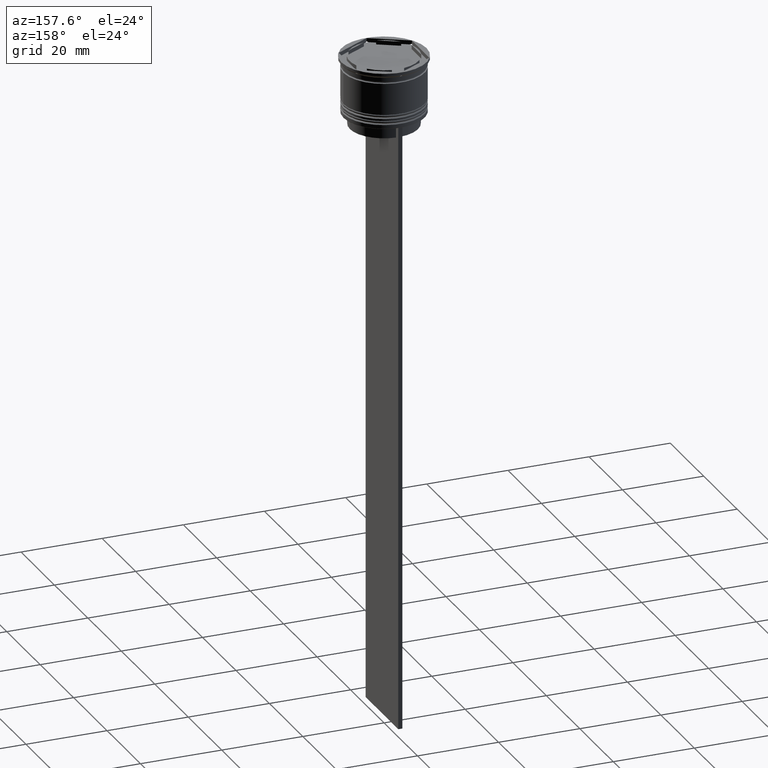
[diagram: clean part render]
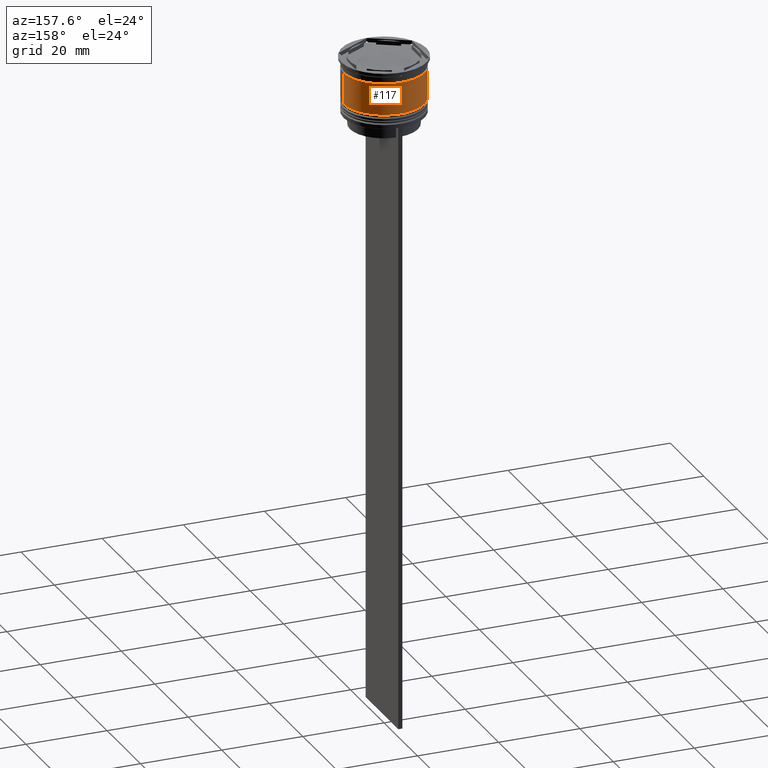
[diagram: same view with one face highlighted and labeled with its STEP entity id]
A machine part, auxiliary view. The second image highlights one B-rep face of the part: STEP entity #117.
In plain terms, the highlighted cylindrical surface (partial cylindrical patch) has radius 10 mm, axis along (-0, -0, 1).
Its self-contained STEP definition (entity closure, byte-faithful):
#6 = FACE_OUTER_BOUND ( 'NONE', #1201, .T. ) ;
#36 = CARTESIAN_POINT ( 'NONE',  ( 0.000000000000000000, 0.000000000000000000, -10.50000000000000000 ) ) ;
#46 = EDGE_CURVE ( 'NONE', #961, #342, #2214, .T. ) ;
#117 = ADVANCED_FACE ( 'NONE', ( #6 ), #980, .T. ) ;
#170 = ORIENTED_EDGE ( 'NONE', *, *, #2156, .T. ) ;
#229 = CARTESIAN_POINT ( 'NONE',  ( 10.00000000000000000, 0.000000000000000000, 0.000000000000000000 ) ) ;
#255 = DIRECTION ( 'NONE',  ( -0.000000000000000000, -0.000000000000000000, 1.000000000000000000 ) ) ;
#342 = VERTEX_POINT ( 'NONE', #710 ) ;
#365 = CIRCLE ( 'NONE', #1894, 9.999999999999998224 ) ;
#404 = LINE ( 'NONE', #1765, #1900 ) ;
#436 = DIRECTION ( 'NONE',  ( -0.000000000000000000, -0.000000000000000000, 1.000000000000000000 ) ) ;
#543 = CARTESIAN_POINT ( 'NONE',  ( -10.00000000000000178, 1.224646799147353454E-15, -10.50000000000000000 ) ) ;
#641 = DIRECTION ( 'NONE',  ( -0.000000000000000000, -0.000000000000000000, 1.000000000000000000 ) ) ;
#710 = CARTESIAN_POINT ( 'NONE',  ( 9.999999999999998224, 0.000000000000000000, -2.700000000000001954 ) ) ;
#797 = DIRECTION ( 'NONE',  ( -0.000000000000000000, -0.000000000000000000, 1.000000000000000000 ) ) ;
#830 = EDGE_CURVE ( 'NONE', #342, #1405, #365, .T. ) ;
#850 = CARTESIAN_POINT ( 'NONE',  ( -9.999999999999998224, 1.224646799147353256E-15, -2.700000000000001954 ) ) ;
#961 = VERTEX_POINT ( 'NONE', #2014 ) ;
#980 = CYLINDRICAL_SURFACE ( 'NONE', #1221, 10.00000000000000000 ) ;
#994 = DIRECTION ( 'NONE',  ( 1.000000000000000000, 0.000000000000000000, 0.000000000000000000 ) ) ;
#1099 = AXIS2_PLACEMENT_3D ( 'NONE', #36, #1389, #1569 ) ;
#1114 = ORIENTED_EDGE ( 'NONE', *, *, #46, .F. ) ;
#1118 = ORIENTED_EDGE ( 'NONE', *, *, #2190, .T. ) ;
#1201 = EDGE_LOOP ( 'NONE', ( #1118, #170, #2129, #1114 ) ) ;
#1221 = AXIS2_PLACEMENT_3D ( 'NONE', #2200, #255, #1785 ) ;
#1389 = DIRECTION ( 'NONE',  ( -0.000000000000000000, -0.000000000000000000, 1.000000000000000000 ) ) ;
#1405 = VERTEX_POINT ( 'NONE', #850 ) ;
#1569 = DIRECTION ( 'NONE',  ( 1.000000000000000000, 0.000000000000000000, 0.000000000000000000 ) ) ;
#1765 = CARTESIAN_POINT ( 'NONE',  ( -10.00000000000000000, 1.224646799147353256E-15, 0.000000000000000000 ) ) ;
#1785 = DIRECTION ( 'NONE',  ( 1.000000000000000000, 0.000000000000000000, 0.000000000000000000 ) ) ;
#1894 = AXIS2_PLACEMENT_3D ( 'NONE', #2542, #641, #994 ) ;
#1900 = VECTOR ( 'NONE', #797, 1000.000000000000000 ) ;
#1989 = CIRCLE ( 'NONE', #1099, 10.00000000000000178 ) ;
#2014 = CARTESIAN_POINT ( 'NONE',  ( 10.00000000000000178, 0.000000000000000000, -10.50000000000000000 ) ) ;
#2129 = ORIENTED_EDGE ( 'NONE', *, *, #830, .F. ) ;
#2156 = EDGE_CURVE ( 'NONE', #2482, #1405, #404, .T. ) ;
#2190 = EDGE_CURVE ( 'NONE', #961, #2482, #1989, .T. ) ;
#2200 = CARTESIAN_POINT ( 'NONE',  ( 0.000000000000000000, 0.000000000000000000, 0.000000000000000000 ) ) ;
#2214 = LINE ( 'NONE', #229, #2519 ) ;
#2482 = VERTEX_POINT ( 'NONE', #543 ) ;
#2519 = VECTOR ( 'NONE', #436, 1000.000000000000000 ) ;
#2542 = CARTESIAN_POINT ( 'NONE',  ( 0.000000000000000000, 0.000000000000000000, -2.700000000000001954 ) ) ;